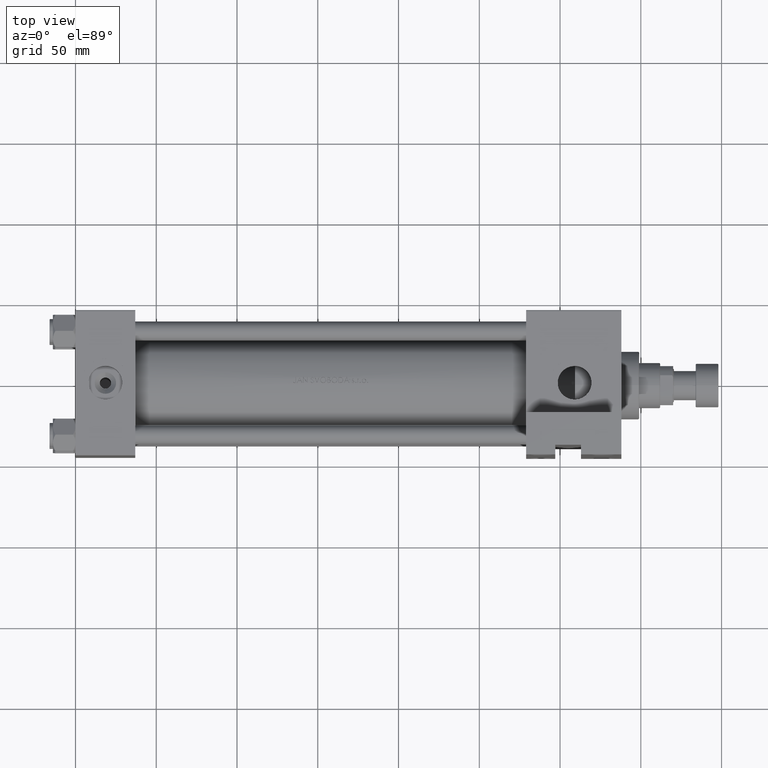
[diagram: clean part render]
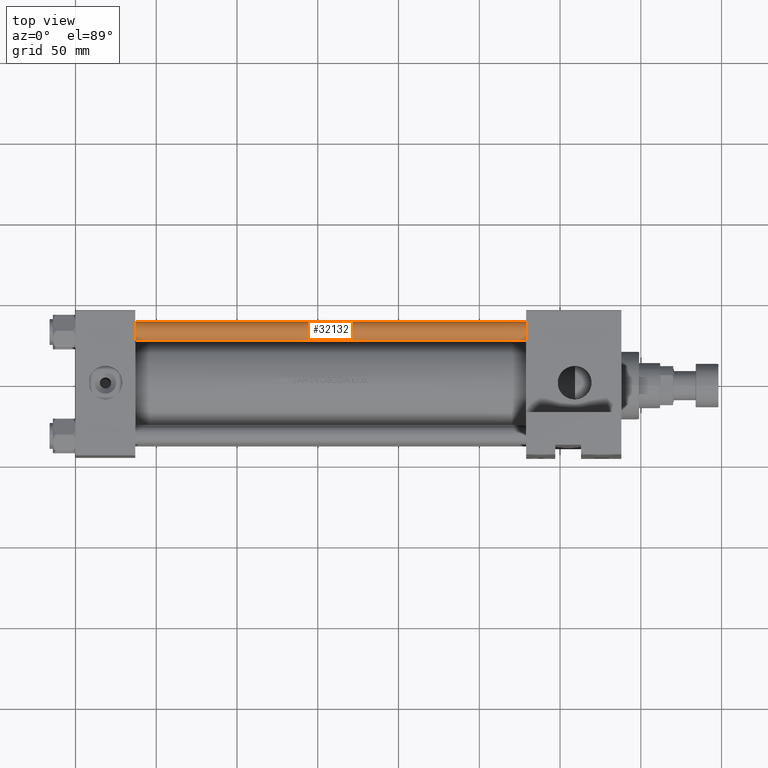
[diagram: same view with one face highlighted and labeled with its STEP entity id]
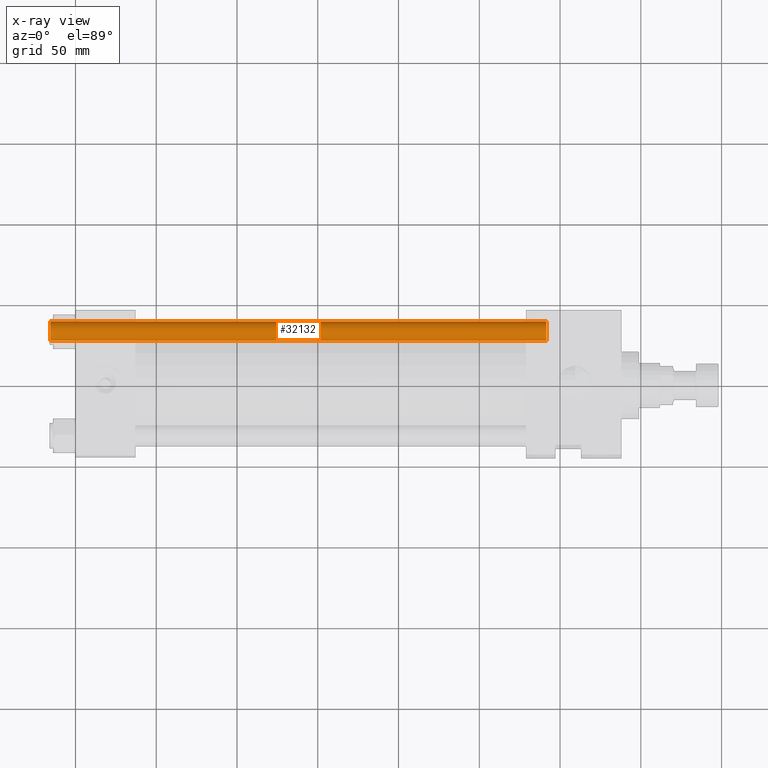
[diagram: x-ray of the same camera — body ghosted, the highlighted face saturated]
A machine part, top view. The second image highlights one B-rep face of the part: STEP entity #32132.
The next image is the same camera in x-ray: the body ghosted, the highlighted face saturated — about 0% of this face is hidden behind the body in this view.
In plain terms, the highlighted cylindrical surface (edge-blend (fillet) strip) has radius 6 mm, axis along (1, -0, 0).
Its self-contained STEP definition (entity closure, byte-faithful):
#918 = CIRCLE ( 'NONE', #42236, 6.000000000000000888 ) ;
#2475 = VECTOR ( 'NONE', #41466, 1000.000000000000000 ) ;
#3539 = CARTESIAN_POINT ( 'NONE',  ( 0.000000000000000000, 0.000000000000000000, 0.5000000000000559552 ) ) ;
#4389 = EDGE_CURVE ( 'NONE', #41078, #49005, #41208, .T. ) ;
#4864 = CARTESIAN_POINT ( 'NONE',  ( -6.000000000000000888, 0.000000000000000000, 307.4999999999999432 ) ) ;
#4987 = AXIS2_PLACEMENT_3D ( 'NONE', #37932, #44803, #48338 ) ;
#6306 = LINE ( 'NONE', #29936, #11581 ) ;
#6631 = ORIENTED_EDGE ( 'NONE', *, *, #13541, .T. ) ;
#6817 = DIRECTION ( 'NONE',  ( -0.000000000000000000, -0.000000000000000000, -1.000000000000000000 ) ) ;
#8280 = DIRECTION ( 'NONE',  ( -1.000000000000000000, 0.000000000000000000, 0.000000000000000000 ) ) ;
#11581 = VECTOR ( 'NONE', #6817, 1000.000000000000000 ) ;
#11603 = FACE_OUTER_BOUND ( 'NONE', #27268, .T. ) ;
#13541 = EDGE_CURVE ( 'NONE', #35459, #41078, #43905, .T. ) ;
#16660 = EDGE_CURVE ( 'NONE', #35459, #36886, #6306, .T. ) ;
#21715 = AXIS2_PLACEMENT_3D ( 'NONE', #35216, #23281, #8280 ) ;
#22355 = DIRECTION ( 'NONE',  ( 1.000000000000000000, 0.000000000000000000, 0.000000000000000000 ) ) ;
#23281 = DIRECTION ( 'NONE',  ( -0.000000000000000000, -0.000000000000000000, -1.000000000000000000 ) ) ;
#23753 = ORIENTED_EDGE ( 'NONE', *, *, #16660, .F. ) ;
#24402 = EDGE_CURVE ( 'NONE', #49005, #36886, #918, .T. ) ;
#25105 = CARTESIAN_POINT ( 'NONE',  ( 6.000000000000000888, 7.347880794884120722E-16, 0.5000000000000559552 ) ) ;
#27268 = EDGE_LOOP ( 'NONE', ( #23753, #6631, #39807, #35997 ) ) ;
#29936 = CARTESIAN_POINT ( 'NONE',  ( 6.000000000000000888, 7.347880794884120722E-16, 308.0000000000000000 ) ) ;
#32132 = ADVANCED_FACE ( 'NONE', ( #11603 ), #39508, .T. ) ;
#35216 = CARTESIAN_POINT ( 'NONE',  ( 0.000000000000000000, 0.000000000000000000, 308.0000000000000000 ) ) ;
#35459 = VERTEX_POINT ( 'NONE', #37197 ) ;
#35997 = ORIENTED_EDGE ( 'NONE', *, *, #24402, .T. ) ;
#36886 = VERTEX_POINT ( 'NONE', #25105 ) ;
#37197 = CARTESIAN_POINT ( 'NONE',  ( 6.000000000000000888, 7.347880794884120722E-16, 307.4999999999999432 ) ) ;
#37932 = CARTESIAN_POINT ( 'NONE',  ( 0.000000000000000000, 0.000000000000000000, 307.4999999999999432 ) ) ;
#39508 = CYLINDRICAL_SURFACE ( 'NONE', #21715, 6.000000000000000888 ) ;
#39807 = ORIENTED_EDGE ( 'NONE', *, *, #4389, .T. ) ;
#41078 = VERTEX_POINT ( 'NONE', #4864 ) ;
#41158 = CARTESIAN_POINT ( 'NONE',  ( -6.000000000000000888, 0.000000000000000000, 0.5000000000000559552 ) ) ;
#41208 = LINE ( 'NONE', #45258, #2475 ) ;
#41466 = DIRECTION ( 'NONE',  ( -0.000000000000000000, -0.000000000000000000, -1.000000000000000000 ) ) ;
#42236 = AXIS2_PLACEMENT_3D ( 'NONE', #3539, #46166, #22355 ) ;
#43905 = CIRCLE ( 'NONE', #4987, 6.000000000000000888 ) ;
#44803 = DIRECTION ( 'NONE',  ( 0.000000000000000000, 0.000000000000000000, -1.000000000000000000 ) ) ;
#45258 = CARTESIAN_POINT ( 'NONE',  ( -6.000000000000000888, 0.000000000000000000, 308.0000000000000000 ) ) ;
#46166 = DIRECTION ( 'NONE',  ( -0.000000000000000000, -0.000000000000000000, 1.000000000000000000 ) ) ;
#48338 = DIRECTION ( 'NONE',  ( 1.000000000000000000, 0.000000000000000000, 0.000000000000000000 ) ) ;
#49005 = VERTEX_POINT ( 'NONE', #41158 ) ;